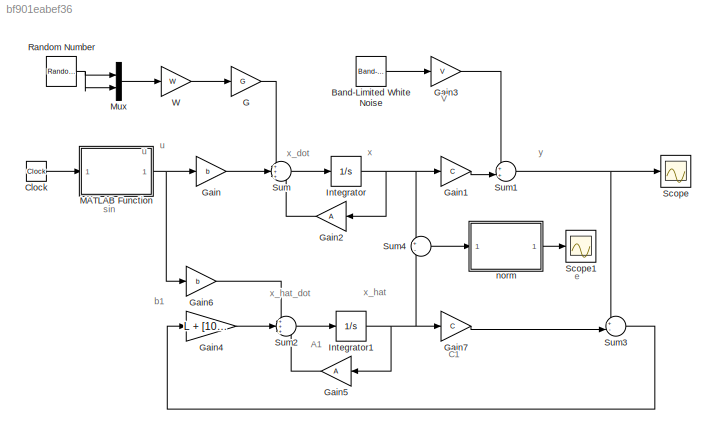
MODEL slx_bf901eabef36
KIND model
CONFIG AbsTol = auto
CONFIG EnableMultiTasking = off
CONFIG FixedStep = auto
CONFIG InitFcn = A = [0 1; -8 -4];\nb = [3; 2];\nC = [1 0];\nW = [4 5; 5 7];\nV = 45;\nG= eye(2);\n\nsyms p11 p12 p22;\nP = [p11 p12; p12 p22];\negn1 = A*P + P*A' + G*W*G' - P*C'*inv(V)*C*P == 0;\nsolution = solve([egn1], [p11, p12, p22]);\np11_sol = double(solution.p11)\np12_sol = double(solution.p12)\np22_sol = double(solution.p22)\n\nPp = [p11_sol(1) p12_sol(1); p12_sol(1) p22_sol(1)];\nL = Pp*C'*inv(V);\n
CONFIG MaxStep = auto
CONFIG MinStep = auto
CONFIG RelTol = 1e-3
CONFIG SampleTimeConstraint = Unconstrained
CONFIG SolverName = VariableStepAuto
CONFIG StartTime = 0.0
CONFIG StopTime = 100
BLOCK [Reference] Band-Limited White Noise  REF=simulink/Sources/Band-Limited
White Noise
  Ports = [0, 1]
  SourceBlock = simulink/Sources/Band-Limited\nWhite Noise
  SourceProductBaseCode = SL
  SourceType = Band-Limited White Noise.
BLOCK [Clock] Clock
BLOCK [Gain] G
  Gain = G
  Multiplication = Matrix(K*u)
BLOCK [Gain] Gain
  Gain = b
  Multiplication = Matrix(K*u)
BLOCK [Gain] Gain1
  Gain = C
  Multiplication = Matrix(K*u)
BLOCK [Gain] Gain2
  Gain = A
  Multiplication = Matrix(K*u)
  NameLocation = top
BLOCK [Gain] Gain3
  Gain = V
  Multiplication = Matrix(K*u)
BLOCK [Gain] Gain4
  Gain = L + [10; 24]
  Multiplication = Matrix(K*u)
BLOCK [Gain] Gain5
  Gain = A
  Multiplication = Matrix(K*u)
  NameLocation = top
BLOCK [Gain] Gain6
  Gain = b
  Multiplication = Matrix(K*u)
BLOCK [Gain] Gain7
  Gain = C
  Multiplication = Matrix(K*u)
BLOCK [Integrator] Integrator
  InitialCondition = [1; 0]
  Ports = [1, 1]
BLOCK [Integrator] Integrator1
  InitialCondition = [0; 0]
  Ports = [1, 1]
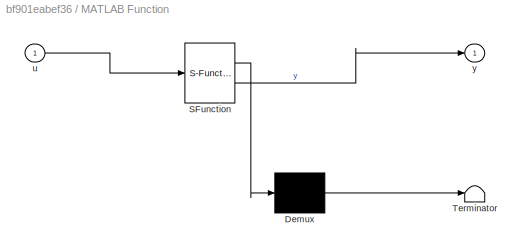
BLOCK [SubSystem] MATLAB Function
  ErrorFcn = Stateflow.Translate.translate
  PermitHierarchicalResolution = ExplicitOnly
  Ports = [1, 1]
  RequestExecContextInheritance = off
  SFBlockType = MATLAB Function
  TreatAsAtomicUnit = on
BLOCK [Demux] MATLAB Function/ Demux 
  Outputs = 1
  Ports = [1, 1]
BLOCK [S-Function] MATLAB Function/ SFunction 
  EnableBusSupport = on
  FunctionName = sf_sfun
  PortCounts = [1 2]
  Ports = [1, 2]
  SFcnIsStateOwnerBlock = off
  SFunctionDeploymentMode = off
  Tag = Stateflow S-Function 2
BLOCK [Terminator] MATLAB Function/ Terminator 
BLOCK [Inport] MATLAB Function/u
BLOCK [Outport] MATLAB Function/y
BLOCK [Mux] Mux
  DisplayOption = bar
  Inputs = 2
  Ports = [2, 1]
BLOCK [RandomNumber] Random Number
  SampleTime = 0.1
BLOCK [Scope] Scope
  Floating = off
  NumInputPorts = 1
  Ports = [1]
  ScopeSpecificationString = Simulink.scopes.TimeScopeBlockCfg('CurrentConfiguration', extmgr.ConfigurationSet(extmgr.Configuration('Core','General UI',true),extmgr.Configuration('Core','Source UI',true),extmgr.Configuration('Sources','WiredSimulink',true),extmgr.Configuration('Visuals','Time Domain',true,'SerializedDisplays',{struct('MinYLimReal','-200.8369','MaxYLimReal','219.99692','YLabelReal','','MinYLimMag',' 0.00000','...<+1368ch>
BLOCK [Scope] Scope1
  Floating = off
  NumInputPorts = 1
  Ports = [1]
  ScopeSpecificationString = Simulink.scopes.TimeScopeBlockCfg('CurrentConfiguration', extmgr.ConfigurationSet(extmgr.Configuration('Core','General UI',true),extmgr.Configuration('Core','Source UI',true),extmgr.Configuration('Sources','WiredSimulink',true,'DataLoggingVariableName','ScopeData1'),extmgr.Configuration('Visuals','Time Domain',true,'SerializedDisplays',{struct('MinYLimReal','-32.48769','MaxYLimReal','301.8979','YL...<+1401ch>
BLOCK [Sum] Sum
  Inputs = +++
  Ports = [3, 1]
BLOCK [Sum] Sum1
  Inputs = ++|
  Ports = [2, 1]
BLOCK [Sum] Sum2
  Inputs = +++
  Ports = [3, 1]
BLOCK [Sum] Sum3
  Inputs = +-|
  Ports = [2, 1]
BLOCK [Sum] Sum4
  Inputs = +-
  Ports = [2, 1]
BLOCK [Gain] W
  Gain = W
  Multiplication = Matrix(K*u)
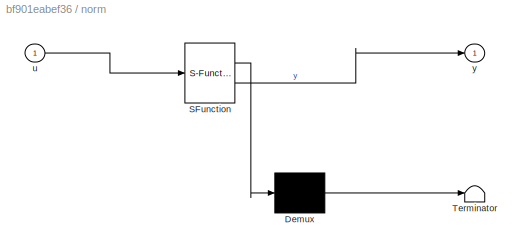
BLOCK [SubSystem] norm
  ErrorFcn = Stateflow.Translate.translate
  PermitHierarchicalResolution = ExplicitOnly
  Ports = [1, 1]
  RequestExecContextInheritance = off
  SFBlockType = MATLAB Function
  TreatAsAtomicUnit = on
BLOCK [Demux] norm/ Demux 
  Outputs = 1
  Ports = [1, 1]
BLOCK [S-Function] norm/ SFunction 
  EnableBusSupport = on
  FunctionName = sf_sfun
  PortCounts = [1 2]
  Ports = [1, 2]
  SFcnIsStateOwnerBlock = off
  SFunctionDeploymentMode = off
  Tag = Stateflow S-Function 1
BLOCK [Terminator] norm/ Terminator 
BLOCK [Inport] norm/u
BLOCK [Outport] norm/y
ANNOTATION (root): A1
ANNOTATION (root): C1
ANNOTATION (root): V
ANNOTATION (root): b1
ANNOTATION (root): e
ANNOTATION (root): sin
ANNOTATION (root): u
ANNOTATION (root): x
ANNOTATION (root): x_dot
ANNOTATION (root): x_hat
ANNOTATION (root): x_hat_dot
ANNOTATION (root): y
LINE Band-Limited White Noise:1 -> Gain3:1
LINE Clock:1 -> MATLAB Function:1
LINE G:1 -> Sum:1
LINE Gain1:1 -> Sum1:2
LINE Gain2:1 -> Sum:3
LINE Gain3:1 -> Sum1:1
LINE Gain4:1 -> Sum2:2
LINE Gain5:1 -> Sum2:3
LINE Gain6:1 -> Sum2:1
LINE Gain7:1 -> Sum3:2
LINE Gain:1 -> Sum:2
NET Integrator1:1 -> Gain5:1, Gain7:1, Sum4:2
NET Integrator:1 -> Gain1:1, Gain2:1, Sum4:1
NET MATLAB Function:1 -> Gain6:1, Gain:1
LINE Mux:1 -> W:1
NET Random Number:1 -> Mux:1, Mux:2
NET Sum1:1 -> Scope:1, Sum3:1
LINE Sum2:1 -> Integrator1:1
LINE Sum3:1 -> Gain4:1
LINE Sum4:1 -> norm:1
LINE Sum:1 -> Integrator:1
LINE W:1 -> G:1
LINE norm:1 -> Scope1:1
note: NET lines group one-source signal fan-out (src -> all destinations, sorted); 1:1 wires keep LINE
CHART MATLAB Function states=1 transitions=1
  STATE_LABEL 'eML_blk_kernel()'
  STATE_LABEL 'SCRIPT:\nfunction y = fcn(u)\n\ny = sin(u);\n'
CHART norm states=1 transitions=1
  STATE_LABEL 'eML_blk_kernel()'
  STATE_LABEL 'SCRIPT:\nfunction y = fcn(u)\n\ny = norm(u);\n'
CHART  states=0 transitions=0
CHART  states=0 transitions=0
